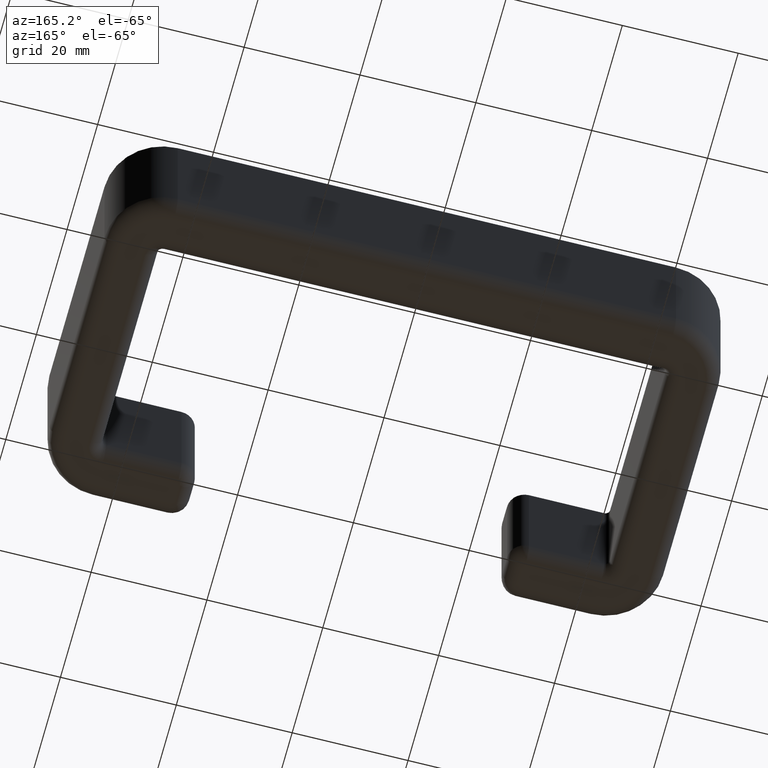
[diagram: clean part render]
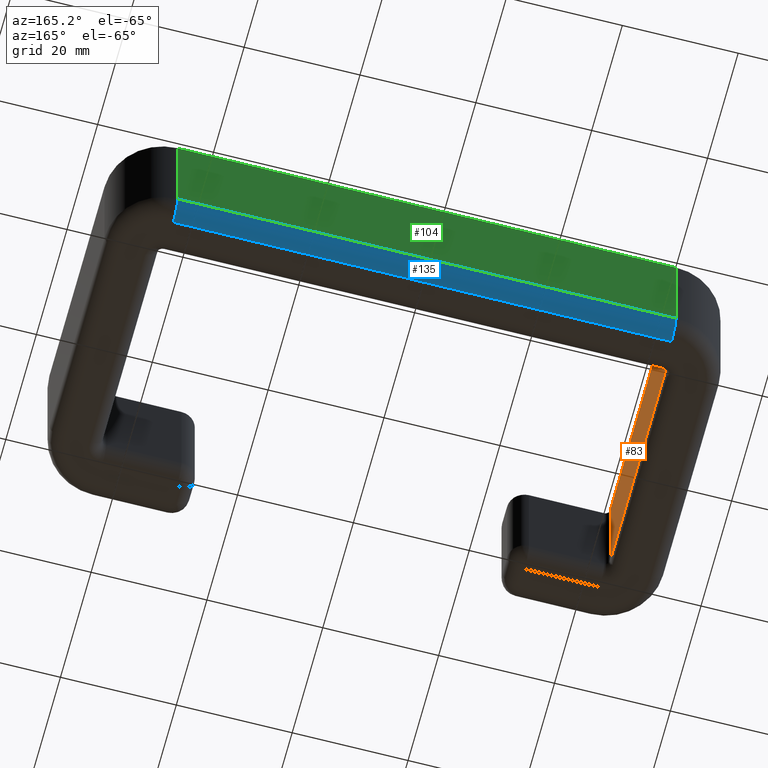
[diagram: same view with three faces highlighted in distinct colors, each labeled with its STEP entity id]
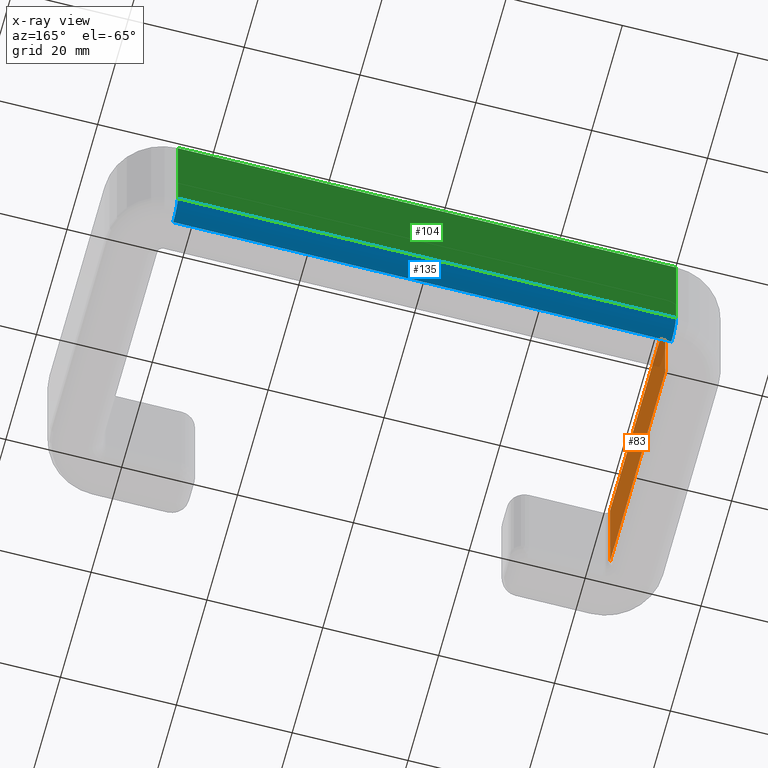
[diagram: x-ray of the same camera — body ghosted, the three highlighted faces saturated]
A machine part, auxiliary view with three faces highlighted in distinct colors.
The next image is the same camera in x-ray (body ghosted, the three faces saturated) — at least one of them is partly hidden behind the body in this view.
Their STEP definitions:

[orange] entity #83 — the highlighted planar face has unit normal (1, 0, 0).
#83 = ADVANCED_FACE( '', ( #164 ), #165, .T. );
#164 = FACE_OUTER_BOUND( '', #307, .T. );
#165 = PLANE( '', #308 );
#307 = EDGE_LOOP( '', ( #545, #546, #547, #548 ) );
#308 = AXIS2_PLACEMENT_3D( '', #549, #550, #551 );
#545 = ORIENTED_EDGE( '', *, *, #1074, .T. );
#546 = ORIENTED_EDGE( '', *, *, #1075, .T. );
#547 = ORIENTED_EDGE( '', *, *, #1076, .F. );
#548 = ORIENTED_EDGE( '', *, *, #1002, .T. );
#549 = CARTESIAN_POINT( '', ( -43.8000000000003, 18.0000000000001, 0.000000000000000 ) );
#550 = DIRECTION( '', ( 1.00000000000000, 0.000000000000000, 0.000000000000000 ) );
#551 = DIRECTION( '', ( 0.000000000000000, 1.00000000000000, 0.000000000000000 ) );
#1002 = EDGE_CURVE( '', #1183, #1181, #1184, .T. );
#1074 = EDGE_CURVE( '', #1181, #1316, #1320, .T. );
#1075 = EDGE_CURVE( '', #1316, #1321, #1322, .F. );
#1076 = EDGE_CURVE( '', #1183, #1321, #1323, .T. );
#1181 = VERTEX_POINT( '', #1467 );
#1183 = VERTEX_POINT( '', #1469 );
#1184 = LINE( '', #1470, #1471 );
#1316 = VERTEX_POINT( '', #1643 );
#1320 = LINE( '', #1647, #1648 );
#1321 = VERTEX_POINT( '', #1649 );
#1322 = LINE( '', #1650, #1651 );
#1323 = LINE( '', #1652, #1653 );
#1467 = CARTESIAN_POINT( '', ( -43.8000000000003, -17.9999999999999, 0.000000000000000 ) );
#1469 = CARTESIAN_POINT( '', ( -43.8000000000003, 18.0000000000001, 0.000000000000000 ) );
#1470 = CARTESIAN_POINT( '', ( -43.8000000000003, 18.0000000000001, 0.000000000000000 ) );
#1471 = VECTOR( '', #1854, 1000.00000000000 );
#1643 = CARTESIAN_POINT( '', ( -43.8000000000003, -17.9999999999999, -20.0000000000000 ) );
#1647 = CARTESIAN_POINT( '', ( -43.8000000000003, -17.9999999999999, 0.000000000000000 ) );
#1648 = VECTOR( '', #1988, 1000.00000000000 );
#1649 = CARTESIAN_POINT( '', ( -43.8000000000003, 18.0000000000001, -20.0000000000000 ) );
#1650 = CARTESIAN_POINT( '', ( -43.8000000000003, 18.0000000000001, -20.0000000000000 ) );
#1651 = VECTOR( '', #1989, 1000.00000000000 );
#1652 = CARTESIAN_POINT( '', ( -43.8000000000003, 18.0000000000001, 0.000000000000000 ) );
#1653 = VECTOR( '', #1990, 1000.00000000000 );
#1854 = DIRECTION( '', ( 0.000000000000000, -1.00000000000000, 0.000000000000000 ) );
#1988 = DIRECTION( '', ( 0.000000000000000, 0.000000000000000, -1.00000000000000 ) );
#1989 = DIRECTION( '', ( 0.000000000000000, -1.00000000000000, 0.000000000000000 ) );
#1990 = DIRECTION( '', ( 0.000000000000000, 0.000000000000000, -1.00000000000000 ) );

[blue] entity #135 — the highlighted cylindrical surface (edge-blend (fillet) strip) has radius 3 mm, axis along (-1, 0, 0).
#135 = ADVANCED_FACE( '', ( #268 ), #269, .T. );
#268 = FACE_OUTER_BOUND( '', #411, .T. );
#269 = CYLINDRICAL_SURFACE( '', #412, 3.00000000000000 );
#411 = EDGE_LOOP( '', ( #922, #923, #924, #925 ) );
#412 = AXIS2_PLACEMENT_3D( '', #926, #927, #928 );
#922 = ORIENTED_EDGE( '', *, *, #1164, .T. );
#923 = ORIENTED_EDGE( '', *, *, #1099, .F. );
#924 = ORIENTED_EDGE( '', *, *, #1166, .F. );
#925 = ORIENTED_EDGE( '', *, *, #1131, .F. );
#926 = CARTESIAN_POINT( '', ( -43.0000000000000, 25.0000000000000, -20.0000000000000 ) );
#927 = DIRECTION( '', ( -1.00000000000000, 0.000000000000000, 0.000000000000000 ) );
#928 = DIRECTION( '', ( 0.000000000000000, 0.000000000000000, -1.00000000000000 ) );
#1099 = EDGE_CURVE( '', #1357, #1359, #1360, .T. );
#1131 = EDGE_CURVE( '', #1408, #1411, #1412, .F. );
#1164 = EDGE_CURVE( '', #1408, #1359, #1448, .T. );
#1166 = EDGE_CURVE( '', #1411, #1357, #1450, .T. );
#1357 = VERTEX_POINT( '', #1697 );
#1359 = VERTEX_POINT( '', #1699 );
#1360 = LINE( '', #1700, #1701 );
#1408 = VERTEX_POINT( '', #1771 );
#1411 = VERTEX_POINT( '', #1775 );
#1412 = LINE( '', #1776, #1777 );
#1448 = CIRCLE( '', #1836, 3.00000000000000 );
#1450 = CIRCLE( '', #1838, 3.00000000000000 );
#1697 = CARTESIAN_POINT( '', ( -43.0000000000000, 25.0000000000000, -23.0000000000000 ) );
#1699 = CARTESIAN_POINT( '', ( 43.0000000000000, 25.0000000000000, -23.0000000000000 ) );
#1700 = CARTESIAN_POINT( '', ( -43.0000000000000, 25.0000000000000, -23.0000000000000 ) );
#1701 = VECTOR( '', #2037, 1000.00000000000 );
#1771 = CARTESIAN_POINT( '', ( 43.0000000000000, 28.0000000000000, -20.0000000000000 ) );
#1775 = CARTESIAN_POINT( '', ( -43.0000000000000, 28.0000000000000, -20.0000000000000 ) );
#1776 = CARTESIAN_POINT( '', ( -43.0000000000000, 28.0000000000000, -20.0000000000000 ) );
#1777 = VECTOR( '', #2085, 1000.00000000000 );
#1836 = AXIS2_PLACEMENT_3D( '', #2136, #2137, #2138 );
#1838 = AXIS2_PLACEMENT_3D( '', #2142, #2143, #2144 );
#2037 = DIRECTION( '', ( 1.00000000000000, 0.000000000000000, 0.000000000000000 ) );
#2085 = DIRECTION( '', ( 1.00000000000000, 0.000000000000000, 0.000000000000000 ) );
#2136 = CARTESIAN_POINT( '', ( 43.0000000000000, 25.0000000000000, -20.0000000000000 ) );
#2137 = DIRECTION( '', ( -1.00000000000000, 0.000000000000000, 0.000000000000000 ) );
#2138 = DIRECTION( '', ( 0.000000000000000, 0.000000000000000, 1.00000000000000 ) );
#2142 = CARTESIAN_POINT( '', ( -43.0000000000000, 25.0000000000000, -20.0000000000000 ) );
#2143 = DIRECTION( '', ( -1.00000000000000, 0.000000000000000, 0.000000000000000 ) );
#2144 = DIRECTION( '', ( 0.000000000000000, 0.000000000000000, 1.00000000000000 ) );

[green] entity #104 — the highlighted planar face has unit normal (0, 1, 0).
#104 = ADVANCED_FACE( '', ( #206 ), #207, .T. );
#206 = FACE_OUTER_BOUND( '', #349, .T. );
#207 = PLANE( '', #350 );
#349 = EDGE_LOOP( '', ( #706, #707, #708, #709 ) );
#350 = AXIS2_PLACEMENT_3D( '', #710, #711, #712 );
#706 = ORIENTED_EDGE( '', *, *, #1130, .T. );
#707 = ORIENTED_EDGE( '', *, *, #1131, .T. );
#708 = ORIENTED_EDGE( '', *, *, #1132, .F. );
#709 = ORIENTED_EDGE( '', *, *, #1016, .T. );
#710 = CARTESIAN_POINT( '', ( -43.0000000000000, 28.0000000000000, 0.000000000000000 ) );
#711 = DIRECTION( '', ( 0.000000000000000, 1.00000000000000, 0.000000000000000 ) );
#712 = DIRECTION( '', ( -1.00000000000000, 0.000000000000000, 0.000000000000000 ) );
#1016 = EDGE_CURVE( '', #1211, #1209, #1212, .T. );
#1130 = EDGE_CURVE( '', #1209, #1408, #1410, .T. );
#1131 = EDGE_CURVE( '', #1408, #1411, #1412, .F. );
#1132 = EDGE_CURVE( '', #1211, #1411, #1413, .T. );
#1209 = VERTEX_POINT( '', #1502 );
#1211 = VERTEX_POINT( '', #1504 );
#1212 = LINE( '', #1505, #1506 );
#1408 = VERTEX_POINT( '', #1771 );
#1410 = LINE( '', #1773, #1774 );
#1411 = VERTEX_POINT( '', #1775 );
#1412 = LINE( '', #1776, #1777 );
#1413 = LINE( '', #1778, #1779 );
#1502 = CARTESIAN_POINT( '', ( 43.0000000000000, 28.0000000000000, 0.000000000000000 ) );
#1504 = CARTESIAN_POINT( '', ( -43.0000000000000, 28.0000000000000, 0.000000000000000 ) );
#1505 = CARTESIAN_POINT( '', ( -43.0000000000000, 28.0000000000000, 0.000000000000000 ) );
#1506 = VECTOR( '', #1882, 1000.00000000000 );
#1771 = CARTESIAN_POINT( '', ( 43.0000000000000, 28.0000000000000, -20.0000000000000 ) );
#1773 = CARTESIAN_POINT( '', ( 43.0000000000000, 28.0000000000000, 0.000000000000000 ) );
#1774 = VECTOR( '', #2084, 1000.00000000000 );
#1775 = CARTESIAN_POINT( '', ( -43.0000000000000, 28.0000000000000, -20.0000000000000 ) );
#1776 = CARTESIAN_POINT( '', ( -43.0000000000000, 28.0000000000000, -20.0000000000000 ) );
#1777 = VECTOR( '', #2085, 1000.00000000000 );
#1778 = CARTESIAN_POINT( '', ( -43.0000000000000, 28.0000000000000, 0.000000000000000 ) );
#1779 = VECTOR( '', #2086, 1000.00000000000 );
#1882 = DIRECTION( '', ( 1.00000000000000, 0.000000000000000, 0.000000000000000 ) );
#2084 = DIRECTION( '', ( 0.000000000000000, 0.000000000000000, -1.00000000000000 ) );
#2085 = DIRECTION( '', ( 1.00000000000000, 0.000000000000000, 0.000000000000000 ) );
#2086 = DIRECTION( '', ( 0.000000000000000, 0.000000000000000, -1.00000000000000 ) );